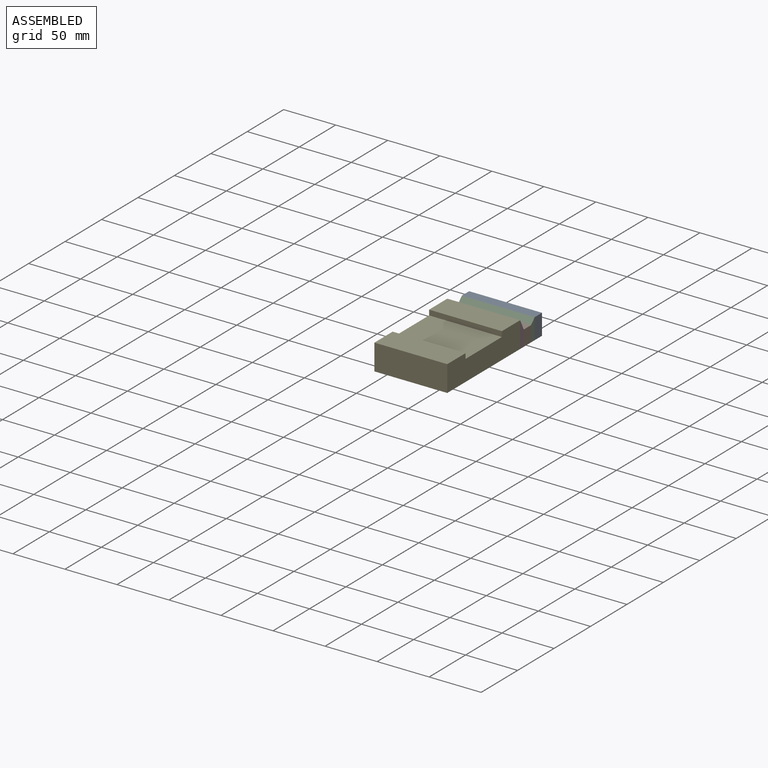
[diagram: assembled view]
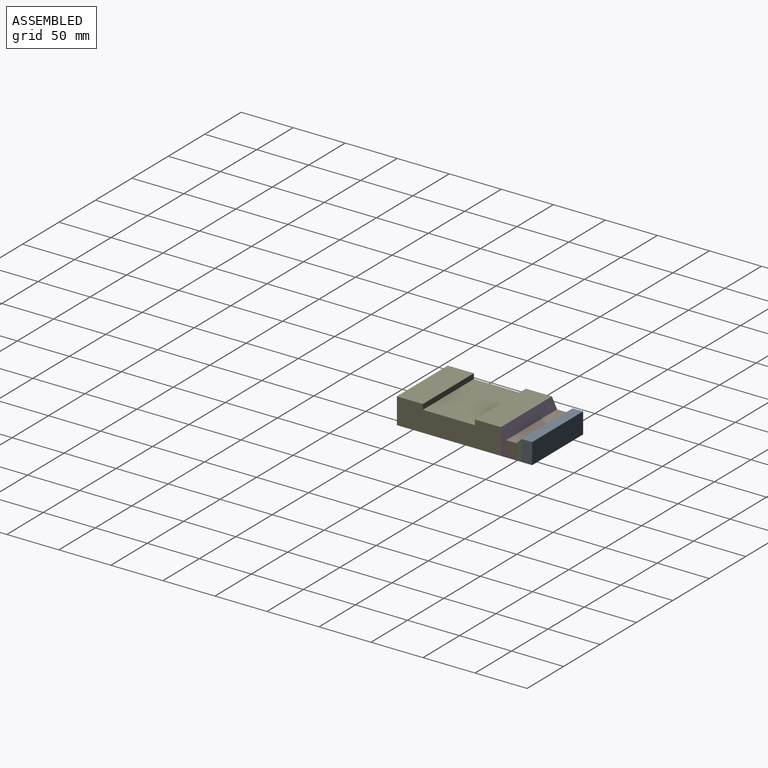
[diagram: assembled view, second angle]
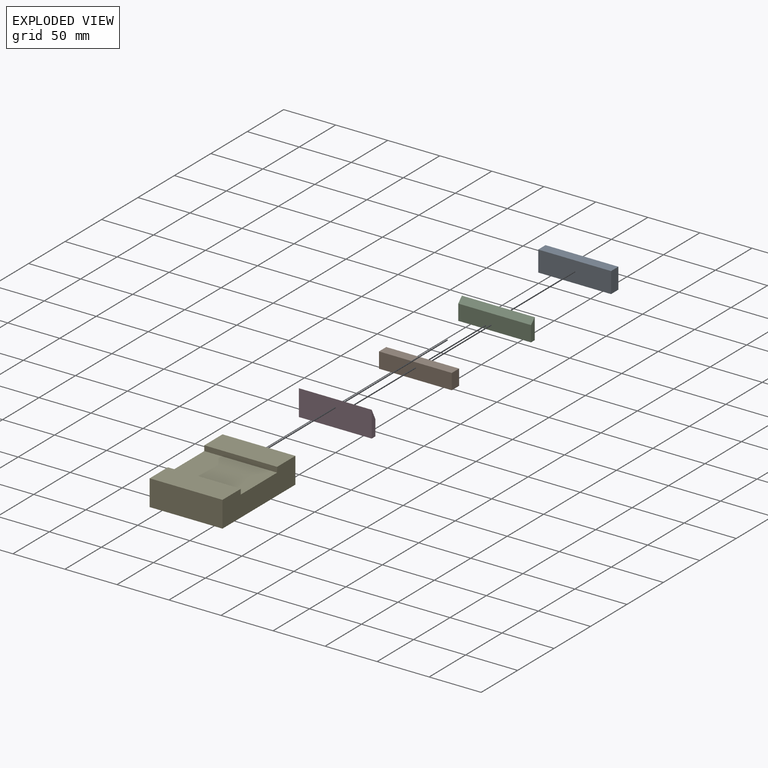
[diagram: exploded view]
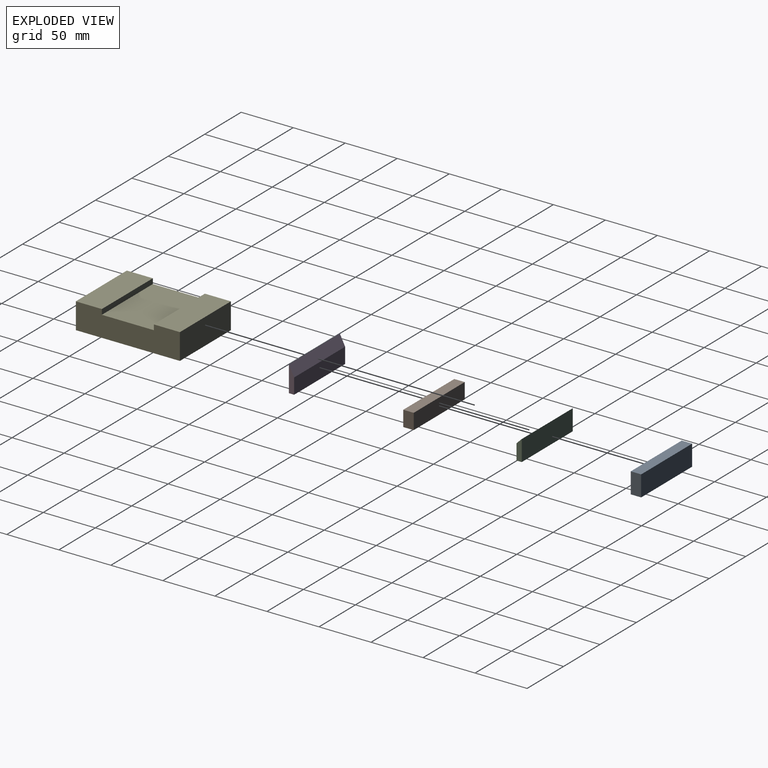
[diagram: exploded view, second angle]
ASSEMBLY  parts=5 mates=4
PART A: 6 faces, bbox 70x10x20 mm
  f0: plane 20x10mm, normal (1,0,0), area 200mm2, adj f1,f3,f4,f5
  f1: plane 70x20mm, normal (0,1,0), area 1400mm2, adj f0,f2,f4,f5
  f2: plane 20x10mm, normal (-1,0,0), area 200mm2, adj f1,f3,f4,f5
  f3: plane 70x20mm, normal (0,-1,0), area 1400mm2, adj f0,f2,f4,f5
  f4: plane 70x10mm, normal (0,0,1), area 700mm2, adj f0,f1,f2,f3
  f5: plane 70x10mm, normal (0,0,-1), area 700mm2, adj f0,f1,f2,f3
PART B: 6 faces, bbox 70x10x15 mm
  f0: plane 15x10mm, normal (1,0,0), area 150mm2, adj f1,f3,f4,f5
  f1: plane 70x15mm, normal (0,1,0), area 1050mm2, adj f0,f2,f4,f5
  f2: plane 15x10mm, normal (-1,0,0), area 150mm2, adj f1,f3,f4,f5
  f3: plane 70x15mm, normal (0,-1,0), area 1050mm2, adj f0,f2,f4,f5
  f4: plane 70x10mm, normal (0,0,1), area 700mm2, adj f0,f1,f2,f3
  f5: plane 70x10mm, normal (0,0,-1), area 700mm2, adj f0,f1,f2,f3
PART C: 6 faces, bbox 70x5x20 mm
  f0: plane 70x5mm, normal (0,-0.71,0.71), area 495mm2, adj f1,f3,f4,f5
  f1: plane 70x15mm, normal (0,-1,0), area 1050mm2, adj f0,f2,f4,f5
  f2: plane 70x5mm, normal (0,0,-1), area 350mm2, adj f1,f3,f4,f5
  f3: plane 70x20mm, normal (0,1,0), area 1400mm2, adj f0,f2,f4,f5
  f4: plane 20x5mm, normal (-1,0,0), area 87.5mm2, adj f0,f1,f2,f3
  f5: plane 20x5mm, normal (1,0,0), area 87.5mm2, adj f0,f1,f2,f3
PART D: 6 faces, bbox 70x5x25 mm
  f0: plane 70x15mm, normal (0,1,0), area 1050mm2, adj f1,f3,f4,f5
  f1: plane 70x10mm, normal (0,0.89,0.45), area 782.6mm2, adj f0,f2,f4,f5
  f2: plane 70x25mm, normal (0,-1,0), area 1750mm2, adj f1,f3,f4,f5
  f3: plane 70x5mm, normal (0,0,-1), area 350mm2, adj f0,f2,f4,f5
  f4: plane 25x5mm, normal (-1,0,0), area 100mm2, adj f0,f1,f2,f3
  f5: plane 25x5mm, normal (1,0,0), area 100mm2, adj f0,f1,f2,f3
PART E: 10 faces, bbox 70x100x25 mm
  f0: plane 70x25mm, normal (0,1,0), area 1750mm2, adj f1,f3,f4,f5
  f1: plane 100x25mm, normal (-1,0,0), area 2250mm2, adj f0,f2,f4,f5,f6,f7,f8,f9
  f2: plane 70x5mm, normal (0,-1,0), area 350mm2, adj f1,f3,f4,f6
  f3: plane 100x25mm, normal (1,0,0), area 2250mm2, adj f0,f2,f4,f5,f6,f7,f8,f9
  f4: plane 70x25mm, normal (0,0,1), area 1750mm2, adj f0,f1,f2,f3
  f5: plane 100x70mm, normal (0,0,-1), area 7000mm2, adj f0,f1,f3,f8
  f6: plane 70x50mm, normal (0,0,1), area 3500mm2, adj f1,f2,f3,f7
  f7: plane 70x5mm, normal (0,1,0), area 350mm2, adj f1,f3,f6,f9
  f8: plane 70x25mm, normal (0,-1,0), area 1750mm2, adj f1,f3,f5,f9
  f9: plane 70x25mm, normal (0,0,1), area 1750mm2, adj f1,f3,f7,f8
PLACE A t=(-10.59,-29.12,12.01)mm
PLACE B t=(-10.59,-29.12,12.01)mm
PLACE C t=(-10.59,-29.12,12.01)mm
PLACE D t=(-10.59,-29.12,12.01)mm
PLACE E t=(-10.59,-29.12,12.01)mm
MATE fastened B.f1 <-> C.f1  axis (0,1,0) through (-23.92,52.53,19.51)mm
MATE fastened A.f3 <-> C.f3  axis (0,-1,0) through (-23.92,57.53,22.01)mm
MATE fastened B.f3 <-> D.f0  axis (0,-1,0) through (-23.92,42.53,19.51)mm
MATE fastened E.f0 <-> D.f2  axis (0,1,0) through (-23.92,37.53,24.51)mm
